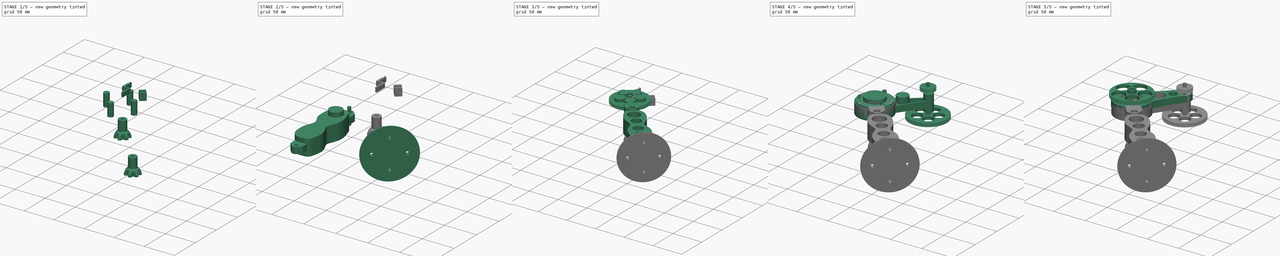
[diagram: build sequence overview — one tinted view per stage of 5, left to right]
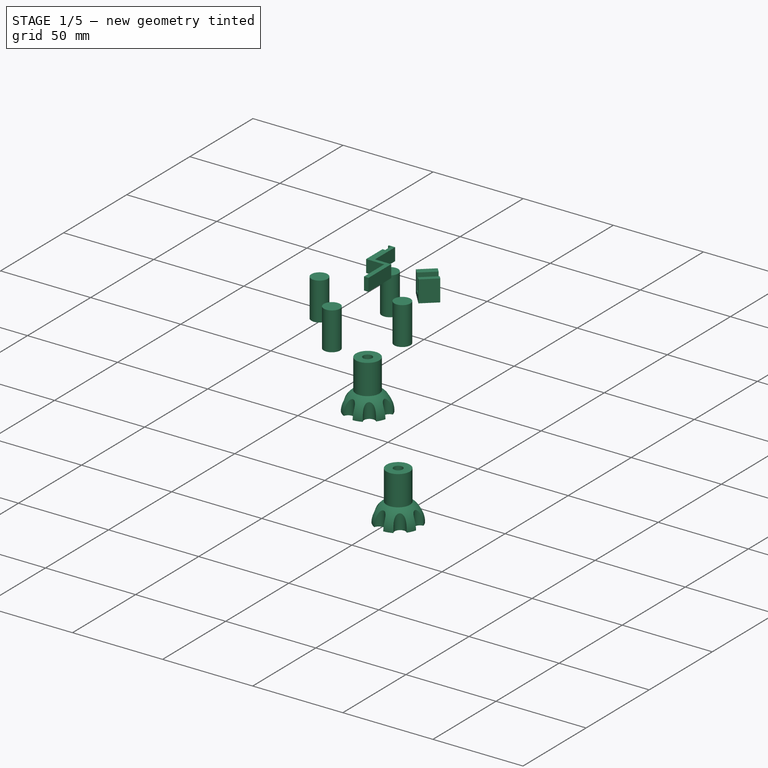
[diagram: stage 1 of 5 — iso view after this stage's code; geometry added in this stage tinted green]
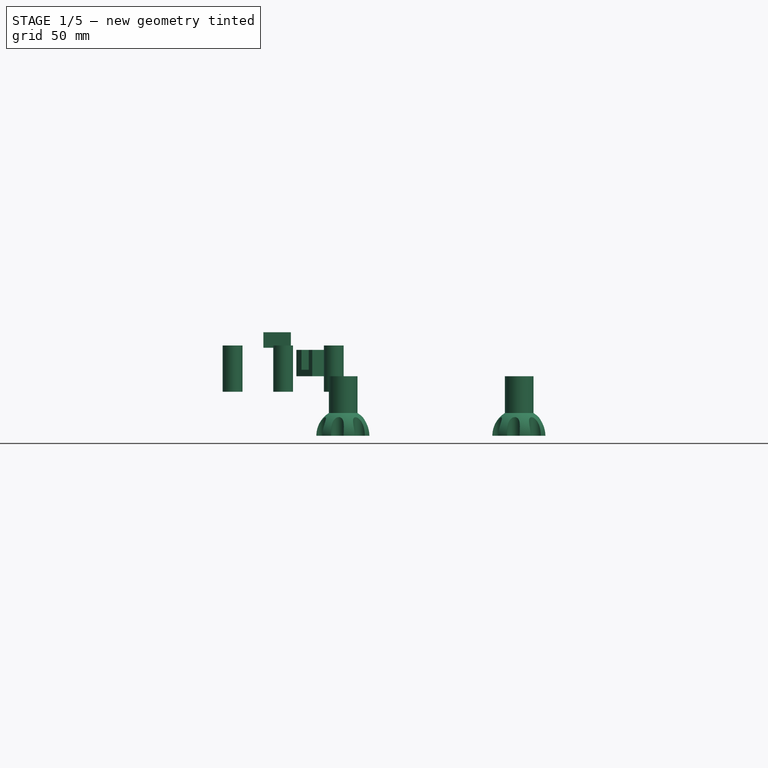
[diagram: stage 1 of 5 — front view after this stage's code; geometry added in this stage tinted green]
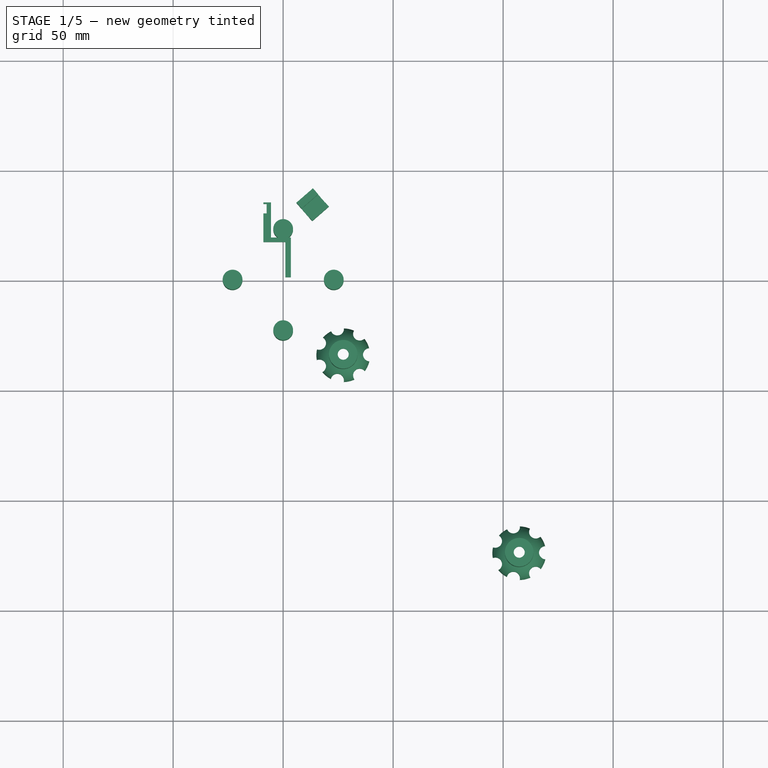
[diagram: stage 1 of 5 — top view after this stage's code; geometry added in this stage tinted green]
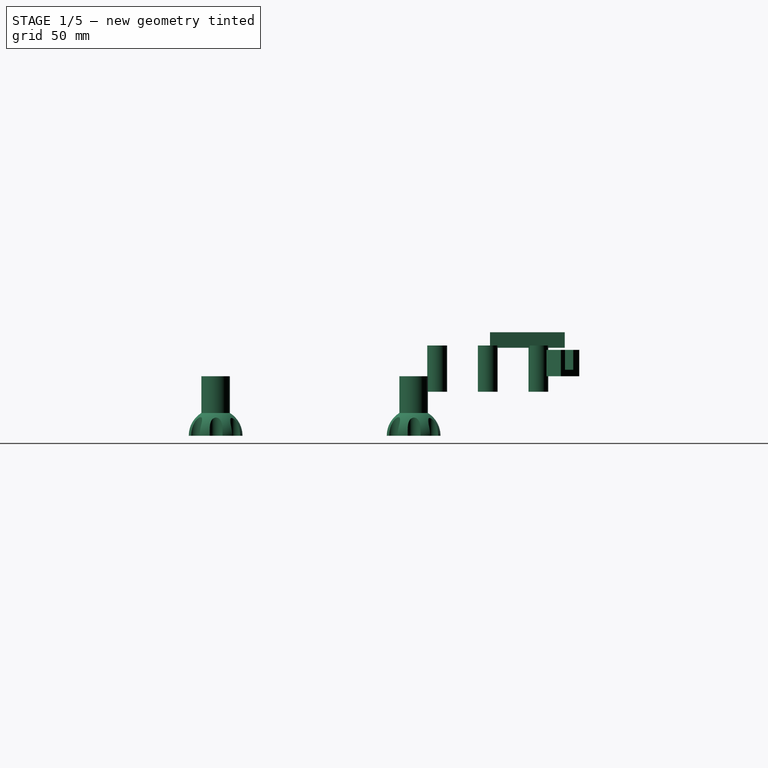
[diagram: stage 1 of 5 — right view after this stage's code; geometry added in this stage tinted green]
FCSTD DOCUMENT  (FreeCAD 0.20R29603 (Git))
Label: шкиф для счетчика оборотов
License: All rights reserved
LicenseURL: http://en.wikipedia.org/wiki/All_rights_reserved
objects: Part::Cylinder×47, Part::Cut×44, Part::MultiFuse×21, Part::Box×19, Part::FeaturePython×8, Part::Torus×6, Part::Fillet×6, Part::Chamfer×5, Part::Extrusion×4, Sketcher::SketchObject×2, Part::RegularPolygon×2, Part::Sphere×2, Part::MultiCommon×1
note: 165 computed .brp shape members not serialized (recipe doc carries the construction recipe); baked Part::Feature solids carry a one-line shape summary decoded from their .brp

FEATURE [Part::Cylinder] Cylinder039  label="Цилиндр039"
  Angle = 360
  AttacherType = Attacher::AttachEngine3D
  FirstAngle = 0
  Height = 21
  Placement = pos=(23,0,0) rot=(0,0,1;0rad)
  Radius = 4.5
  SecondAngle = 0
FEATURE [Part::FeaturePython] Array005  # Draft array (typed FeaturePython)
  Angle = 360
  ArrayType = 1
  Axis = (0,0,1)
  Base = -> Cylinder039
  Center = (0,0,0)
  Fuse = false
  IntervalAxis = (0,0,0)
  IntervalX = (1,0,0)
  IntervalY = (0,1,0)
  IntervalZ = (0,0,1)
  NumberPolar = 4
  NumberX = 2
  NumberY = 2
  NumberZ = 1
  Placement = pos=(0,0,-20) rot=(0,0,1;0rad)
FEATURE [Part::RegularPolygon] RegularPolygon  label="Правильный многоугольник"
  AttacherType = Attacher::AttachEngine3D
  Circumradius = 4.5
  Placement = pos=(27.3,-33.7,-17) rot=(0,0,1;0rad)
  Polygon = 6
FEATURE [Part::Extrusion] Extrude003
  Base = -> RegularPolygon
  Dir = (0,0,1)
  DirMode = 2
  FaceMakerClass = Part::FaceMakerBullseye
  LengthFwd = 24
  LengthRev = 0
  Placement = pos=(0,0,-15) rot=(0,0,1;0rad)
  Solid = true
  Symmetric = false
FEATURE [Part::Cylinder] Cylinder040  label="Цилиндр040"
  Angle = 360
  AttacherType = Attacher::AttachEngine3D
  FirstAngle = 0
  Height = 31
  Placement = pos=(27.3,-33.7,-33) rot=(0,0,1;0rad)
  Radius = 2.5
  SecondAngle = 0
FEATURE [Part::Cylinder] Cylinder041  label="Цилиндр041"
  Angle = 360
  AttacherType = Attacher::AttachEngine3D
  FirstAngle = 0
  Height = 27
  Placement = pos=(27.3,-33.7,-32) rot=(0,0,1;0rad)
  Radius = 6.5
  SecondAngle = 0
FEATURE [Part::Cut] Cut035
  Base = -> Cylinder041
  Tool = -> Cylinder040
FEATURE [Part::Sphere] Sphere  label="Сфера"
  Angle1 = -90
  Angle2 = 90
  Angle3 = 180
  AttacherType = Attacher::AttachEngine3D
  Placement = pos=(27.3,-33.7,-32) rot=(1,0,0;1.5708rad)
  Radius = 12.2
FEATURE [Part::MultiFuse] Fusion018
  Shapes = -> [Cut035,Sphere]
FEATURE [Part::Cut] Cut036
  Base = -> Fusion018
  Tool = -> Extrude003
FEATURE [Part::Cylinder] Cylinder042  label="Цилиндр042"
  Angle = 360
  AttacherType = Attacher::AttachEngine3D
  FirstAngle = 0
  Height = 10
  Placement = pos=(12,0,0) rot=(0,0,1;0rad)
  Radius = 3
  SecondAngle = 0
FEATURE [Part::FeaturePython] Array006  # Draft array (typed FeaturePython)
  AlwaysSyncPlacement = false
  Angle = 360
  ArrayType = 1
  Axis = (0,0,1)
  Base = -> Cylinder042
  Center = (0,0,0)
  Count = 7
  ExpandArray = false
  Fuse = false
  IntervalAxis = (0,0,0)
  IntervalX = (50,0,0)
  IntervalY = (0,50,0)
  IntervalZ = (0,0,50)
  NumberCircles = 3
  NumberPolar = 7
  NumberX = 2
  NumberY = 2
  NumberZ = 1
  Placement = pos=(27.3,-33.5,-32) rot=(0,0,1;0rad)
  PlacementList = 7 placements: [(12,0,0),(7.48188,9.38198,0),(-2.67025,11.6991,0),(-10.8116,5.2066,0),(-10.8116,-5.2066,0),(-2.67025,-11.6991,0),(7.48188,-9.38198,0)]
  RadialDistance = 50
  ScaleList = (7) [(1,1,1),(1,1,1),(1,1,1),(1,1,1),(1,1,1),(1,1,1),(1,1,1)]
  Symmetry = 1
  TangentialDistance = 25
FEATURE [Part::Cut] Cut037
  Base = -> Cut036
  Placement = pos=(0,0,-8) rot=(0,0,1;0rad)
  Tool = -> Array006
FEATURE [Part::Cylinder] Cylinder043  label="Цилиндр043"
  Angle = 360
  AttacherType = Attacher::AttachEngine3D
  FirstAngle = 0
  Height = 31
  Placement = pos=(27.3,-33.7,-33) rot=(0,0,1;0rad)
  Radius = 2.5
  SecondAngle = 0
FEATURE [Part::Cylinder] Cylinder044  label="Цилиндр044"
  Angle = 360
  AttacherType = Attacher::AttachEngine3D
  FirstAngle = 0
  Height = 27
  Placement = pos=(27.3,-33.7,-32) rot=(0,0,1;0rad)
  Radius = 6.5
  SecondAngle = 0
FEATURE [Part::Cylinder] Cylinder045  label="Цилиндр045"
  Angle = 360
  AttacherType = Attacher::AttachEngine3D
  FirstAngle = 0
  Height = 10
  Placement = pos=(12,0,0) rot=(0,0,1;0rad)
  Radius = 3
  SecondAngle = 0
FEATURE [Part::RegularPolygon] RegularPolygon001  label="Правильный многоугольник001"
  AttacherType = Attacher::AttachEngine3D
  Circumradius = 4.5
  Placement = pos=(27.3,-33.7,-17) rot=(0,0,1;0rad)
  Polygon = 6
FEATURE [Part::Extrusion] Extrude004
  Base = -> RegularPolygon001
  Dir = (0,0,1)
  DirMode = 2
  FaceMakerClass = Part::FaceMakerBullseye
  LengthFwd = 24
  LengthRev = 0
  Placement = pos=(0,0,-15) rot=(0,0,1;0rad)
  Solid = true
  Symmetric = false
FEATURE [Part::Sphere] Sphere001  label="Сфера001"
  Angle1 = -90
  Angle2 = 90
  Angle3 = 180
  AttacherType = Attacher::AttachEngine3D
  Placement = pos=(27.3,-33.7,-32) rot=(1,0,0;1.5708rad)
  Radius = 12.2
FEATURE [Part::Cut] Cut039
  Base = -> Cylinder044
  Tool = -> Cylinder043
FEATURE [Part::MultiFuse] Fusion019
  Shapes = -> [Cut039,Sphere001]
FEATURE [Part::Cut] Cut040
  Base = -> Fusion019
  Tool = -> Extrude004
FEATURE [Part::FeaturePython] Array007  # Draft array (typed FeaturePython)
  AlwaysSyncPlacement = false
  Angle = 360
  ArrayType = 1
  Axis = (0,0,1)
  Base = -> Cylinder045
  Center = (0,0,0)
  Count = 7
  ExpandArray = false
  Fuse = false
  IntervalAxis = (0,0,0)
  IntervalX = (50,0,0)
  IntervalY = (0,50,0)
  IntervalZ = (0,0,50)
  NumberCircles = 3
  NumberPolar = 7
  NumberX = 2
  NumberY = 2
  NumberZ = 1
  Placement = pos=(27.3,-33.5,-32) rot=(0,0,1;0rad)
  PlacementList = 7 placements: [(12,0,0),(7.48188,9.38198,0),(-2.67025,11.6991,0),(-10.8116,5.2066,0),(-10.8116,-5.2066,0),(-2.67025,-11.6991,0),(7.48188,-9.38198,0)]
  RadialDistance = 50
  ScaleList = (7) [(1,1,1),(1,1,1),(1,1,1),(1,1,1),(1,1,1),(1,1,1),(1,1,1)]
  Symmetry = 1
  TangentialDistance = 25
FEATURE [Part::Cut] Cut038
  Base = -> Cut040
  Placement = pos=(80,-90,-8) rot=(0,0,1;0rad)
  Tool = -> Array007
FEATURE [Part::Box] Box013  label="Куб013"
  AttacherType = Attacher::AttachEngine3D
  Height = 12
  Length = 11
  Placement = pos=(6,35,-13) rot=(0,0,-1;0.855211rad)
  Width = 10
FEATURE [Part::Box] Box014  label="Куб014"
  AttacherType = Attacher::AttachEngine3D
  Height = 9
  Length = 5
  Placement = pos=(8,32,-10) rot=(0,0,-1;0.855211rad)
  Width = 11
FEATURE [Part::Cut] Cut041
  Base = -> Box013
  Tool = -> Box014
FEATURE [Part::Cylinder] Cylinder046  label="Цилиндр046"
  Angle = 360
  AttacherType = Attacher::AttachEngine3D
  FirstAngle = 0
  Height = 10
  Placement = pos=(12,36,-6) rot=(-0.884029,-0.330525,0.330525;1.69375rad)
  Radius = 1.5
  SecondAngle = 0
FEATURE [Part::Cut] Cut042
  Base = -> Cut041
  Tool = -> Cylinder046
FEATURE [Part::Box] Box015  label="Куб015"
  AttacherType = Attacher::AttachEngine3D
  Height = 7
  Length = 2.5
  Placement = pos=(1,1,0) rot=(0,0,1;0rad)
  Width = 18
FEATURE [Part::Box] Box016  label="Куб016"
  AttacherType = Attacher::AttachEngine3D
  Height = 7
  Length = 12
  Placement = pos=(-9,17,0) rot=(0,0,1;0rad)
  Width = 2
FEATURE [Part::Box] Box017  label="Куб017"
  AttacherType = Attacher::AttachEngine3D
  Height = 7
  Length = 3.5
  Placement = pos=(-9,17,0) rot=(0,0,1;0rad)
  Width = 18
FEATURE [Part::Box] Box018  label="Куб018"
  AttacherType = Attacher::AttachEngine3D
  Height = 7
  Length = 3.5
  Placement = pos=(-11,30,0) rot=(0,0,1;0rad)
  Width = 4.3
FEATURE [Part::Cut] Cut043
  Base = -> Box017
  Tool = -> Box018
FEATURE [Part::MultiFuse] Fusion020
  Shapes = -> [Box015,Box016,Cut043]
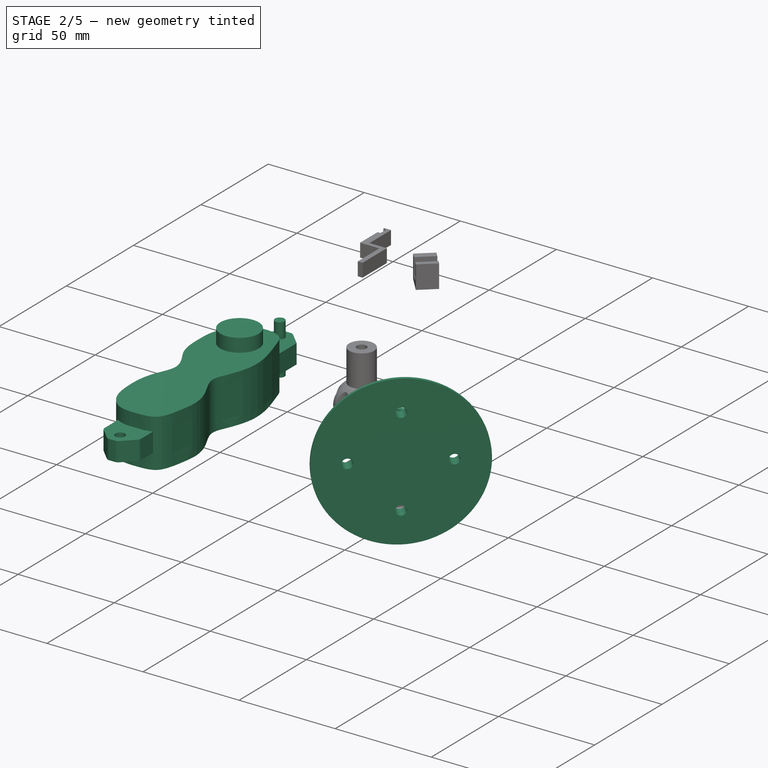
[diagram: stage 2 of 5 — iso view after this stage's code; geometry added in this stage tinted green]
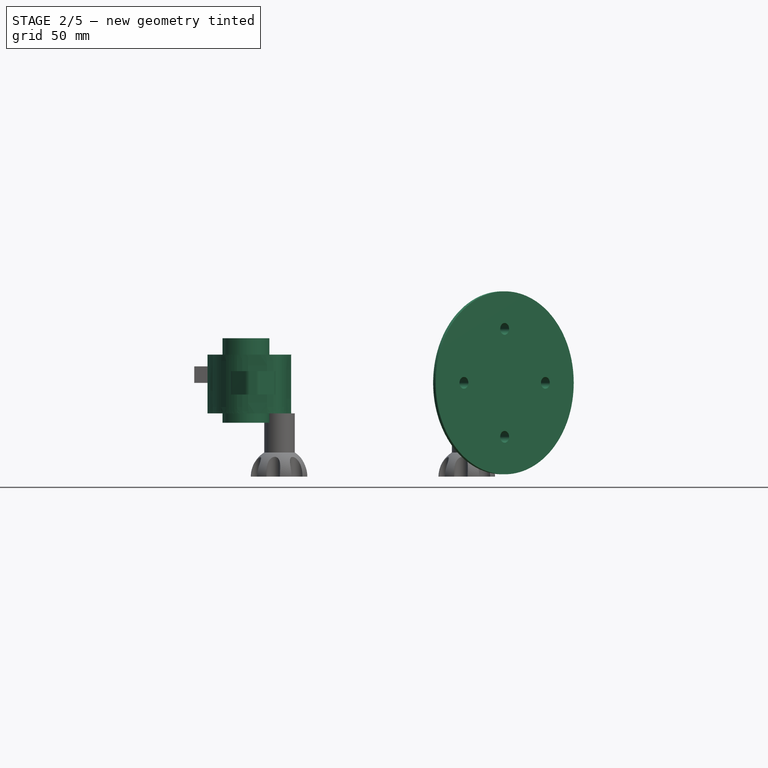
[diagram: stage 2 of 5 — front view after this stage's code; geometry added in this stage tinted green]
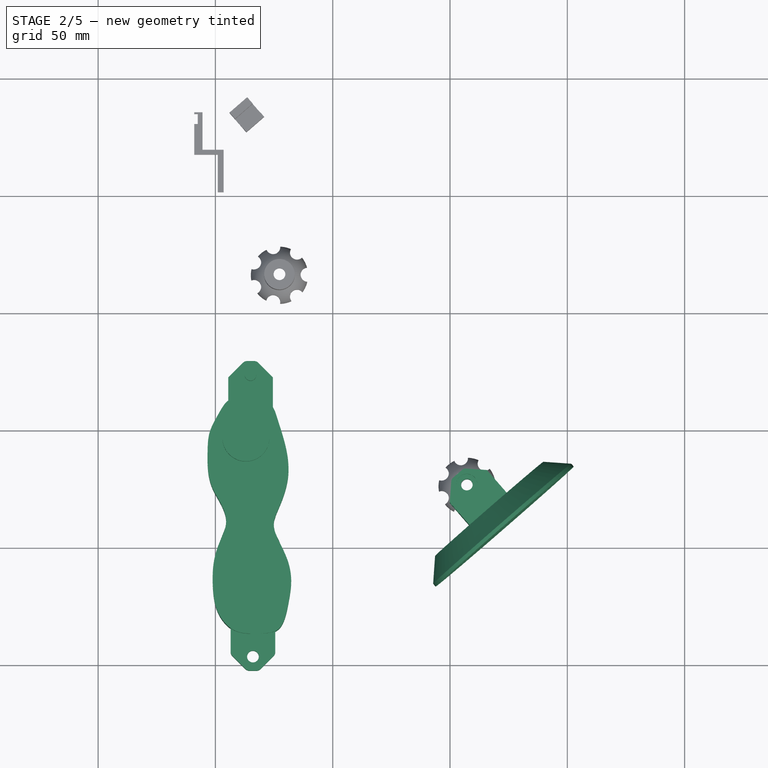
[diagram: stage 2 of 5 — top view after this stage's code; geometry added in this stage tinted green]
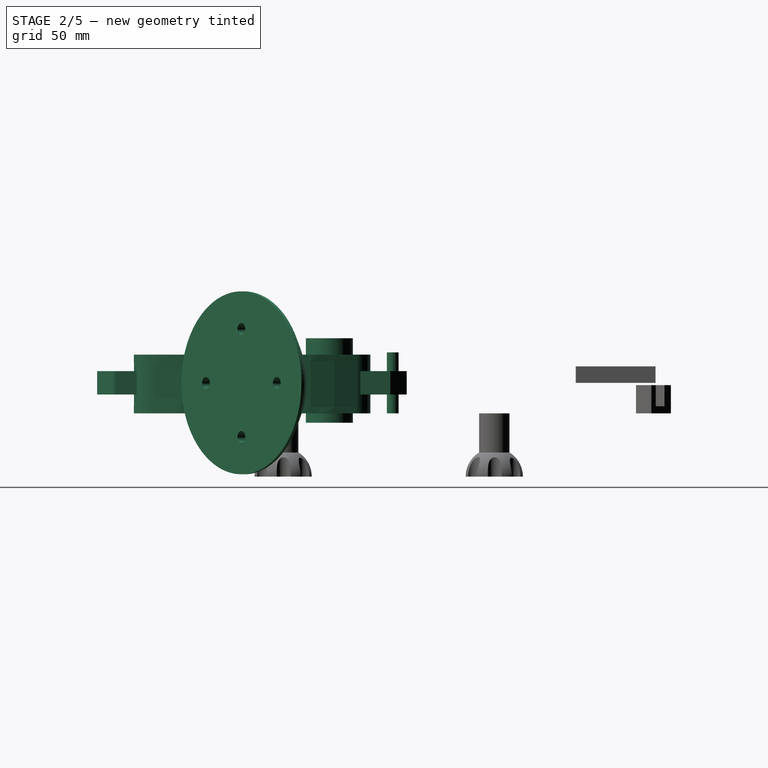
[diagram: stage 2 of 5 — right view after this stage's code; geometry added in this stage tinted green]
FEATURE [Part::Box] Box008  label="Куб008"
  AttacherType = Attacher::AttachEngine3D
  Height = 24
  Length = 21
  Placement = pos=(44.5,-45,-12.5) rot=(0,0,1;0rad)
  Width = 22
FEATURE [Part::Cylinder] Cylinder028  label="Цилиндр028"
  Angle = 360
  AttacherType = Attacher::AttachEngine3D
  FirstAngle = 0
  Height = 5
  Placement = pos=(55,-39,8) rot=(0,0,1;0rad)
  Radius = 4.5
  SecondAngle = 0
FEATURE [Part::Box] Box009  label="Куб009"
  AttacherType = Attacher::AttachEngine3D
  Height = 21
  Length = 18
  Placement = pos=(46,-30,-11) rot=(0,0,1;0rad)
  Width = 10
FEATURE [Part::Box] Box010  label="Куб010"
  AttacherType = Attacher::AttachEngine3D
  Height = 10
  Length = 24
  Placement = pos=(43,-46,-5) rot=(0,0,1;0rad)
  Width = 14
FEATURE [Part::Cylinder] Cylinder029  label="Цилиндр029"
  Angle = 360
  AttacherType = Attacher::AttachEngine3D
  FirstAngle = 0
  Height = 32
  Placement = pos=(55,-39,-20) rot=(0,0,1;0rad)
  Radius = 2.5
  SecondAngle = 0
FEATURE [Part::Cylinder] Cylinder030  label="Цилиндр030"
  Angle = 360
  AttacherType = Attacher::AttachEngine3D
  FirstAngle = 0
  Height = 5
  Placement = pos=(55,-39,-14) rot=(0,0,1;0rad)
  Radius = 4.5
  SecondAngle = 0
FEATURE [Part::Cut] Cut025
  Base = -> Box008
  Tool = -> Box009
FEATURE [Part::Chamfer] Chamfer001
  Base = -> Cut025
  Edges = 2 edges r=7: [Edge1,Edge6]
FEATURE [Part::Fillet] Fillet001
  Base = -> Chamfer001
  Edges = 2 edges r=2: [Edge11,Edge21]
FEATURE [Part::Cut] Cut024
  Base = -> Fillet001
  Tool = -> Box010
FEATURE [Part::Cut] Cut027
  Base = -> Cut024
  Tool = -> Cylinder030
FEATURE [Part::Cut] Cut026
  Base = -> Cut027
  Tool = -> Cylinder028
FEATURE [Part::Cut] Cut023
  Base = -> Cut026
  Placement = pos=(-40,-38,0) rot=(0,0,1;0rad)
  Tool = -> Cylinder029
FEATURE [Part::Box] Box011  label="Куб011"
  AttacherType = Attacher::AttachEngine3D
  Height = 10
  Length = 19
  Placement = pos=(6,-92,-5) rot=(0,0,1;0rad)
  Width = 21
FEATURE [Part::Chamfer] Chamfer002
  Base = -> Box011
  Edges = 2 edges r=7: [Edge3,Edge7]
FEATURE [Part::Fillet] Fillet002
  Base = -> Chamfer002
  Edges = 2 edges r=2.7: [Edge11,Edge17]
  Placement = pos=(-0.5,0,0) rot=(0,0,1;0rad)
FEATURE [Part::Cylinder] Cylinder031  label="Цилиндр031"
  Angle = 360
  AttacherType = Attacher::AttachEngine3D
  FirstAngle = 0
  Height = 26
  Placement = pos=(15,-77,-13) rot=(0,0,1;0rad)
  Radius = 2.5
  SecondAngle = 0
FEATURE [Part::Cylinder] Cylinder032  label="Цилиндр032"
  Angle = 360
  AttacherType = Attacher::AttachEngine3D
  FirstAngle = 0
  Height = 26
  Placement = pos=(15,-77,-13) rot=(0,0,1;0rad)
  Radius = 2.5
  SecondAngle = 0
FEATURE [Part::Box] Box012  label="Куб012"
  AttacherType = Attacher::AttachEngine3D
  Height = 10
  Length = 19
  Placement = pos=(6,-92,-5) rot=(0,0,1;0rad)
  Width = 21
FEATURE [Part::Chamfer] Chamfer003
  Base = -> Box012
  Edges = 2 edges r=7: [Edge3,Edge7]
FEATURE [Part::Fillet] Fillet005
  Base = -> Chamfer003
  Edges = 2 edges r=2.7: [Edge11,Edge17]
  Placement = pos=(-0.5,0,0) rot=(0,0,1;0rad)
FEATURE [Part::Cut] Cut029
  Base = -> Fillet005
  Tool = -> Cylinder032
FEATURE [Part::Fillet] Fillet004
  Base = -> Cut029
  Edges = 2 edges r=2.3: [Edge12,Edge23]
  Placement = pos=(31,-274,0) rot=(0,0,1;3.14159rad)
FEATURE [Sketcher::SketchObject] Sketch001
  FullyConstrained = false
  sketch-geometry (61):
    g0-g30: Circle x31 (B-spline internal-alignment scaffolding for g31; pole/knot coordinates omitted)
    g31: BSplineCurve PolesCount=31 KnotsCount=29 Degree=3 IsPeriodic=0
    g32-g60: GeomPoint x29 (B-spline internal-alignment scaffolding for g31; pole/knot coordinates omitted)
  constraints (4):
    c: Weight(g0) = 1
    c: Equal(g0, g1-g30) x30
    c: InternalAlignment(g0-g30 -> g31) x31
    c: InternalAlignment(g32-g60 -> g31) x29
FEATURE [Part::Extrusion] Extrude001
  Base = -> Sketch001
  Dir = (0,0,1)
  DirMode = 2
  FaceMakerClass = Part::FaceMakerBullseye
  LengthFwd = 25
  LengthRev = 0
  Placement = pos=(0,0,-13) rot=(0,0,1;0rad)
  Solid = true
  Symmetric = false
FEATURE [Part::Cylinder] Cylinder033  label="Цилиндр033"
  Angle = 360
  AttacherType = Attacher::AttachEngine3D
  FirstAngle = 0
  Height = 36
  Placement = pos=(13,-104,-17) rot=(0,0,1;0rad)
  Radius = 10
  SecondAngle = 0
FEATURE [Part::Cylinder] Cylinder037  label="Цилиндр037"
  Angle = 360
  AttacherType = Attacher::AttachEngine3D
  FirstAngle = 0
  Height = 10
  Placement = pos=(14.5,-70,0) rot=(-1,0,0;1.5708rad)
  Radius = 39
  SecondAngle = 0
FEATURE [Part::Chamfer] Chamfer004
  Base = -> Cylinder037
  Edges = 1 edges r=8.4: [Edge3]
  Placement = pos=(0,7,0) rot=(0,0,1;0rad)
FEATURE [Part::Cylinder] Cylinder038  label="Цилиндр038"
  Angle = 360
  AttacherType = Attacher::AttachEngine3D
  FirstAngle = 0
  Height = 21
  Placement = pos=(23,0,0) rot=(0,0,1;0rad)
  Radius = 2.5
  SecondAngle = 0
FEATURE [Part::FeaturePython] Array004  # Draft array (typed FeaturePython)
  Angle = 360
  ArrayType = 1
  Axis = (0,0,1)
  Base = -> Cylinder038
  Center = (0,0,0)
  Fuse = false
  IntervalAxis = (0,0,0)
  IntervalX = (1,0,0)
  IntervalY = (0,1,0)
  IntervalZ = (0,0,1)
  NumberPolar = 4
  NumberX = 2
  NumberY = 2
  NumberZ = 1
FEATURE [Part::MultiFuse] Fusion016
  Placement = pos=(14.5,-61,0) rot=(-1,0,0;1.5708rad)
  Shapes = -> [Array004,Array005]
FEATURE [Part::Cut] Cut034
  Base = -> Chamfer004
  Tool = -> Fusion016
FEATURE [Part::MultiFuse] Fusion017
  Placement = pos=(169,-172,0) rot=(0,0,1;3.85718rad)
  Shapes = -> [Cut023,Cut034]
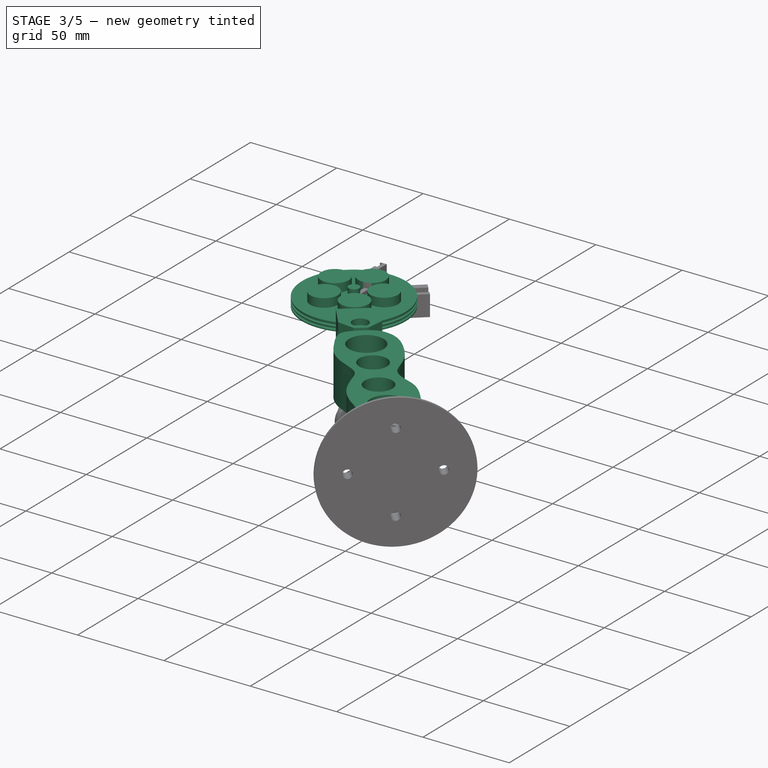
[diagram: stage 3 of 5 — iso view after this stage's code; geometry added in this stage tinted green]
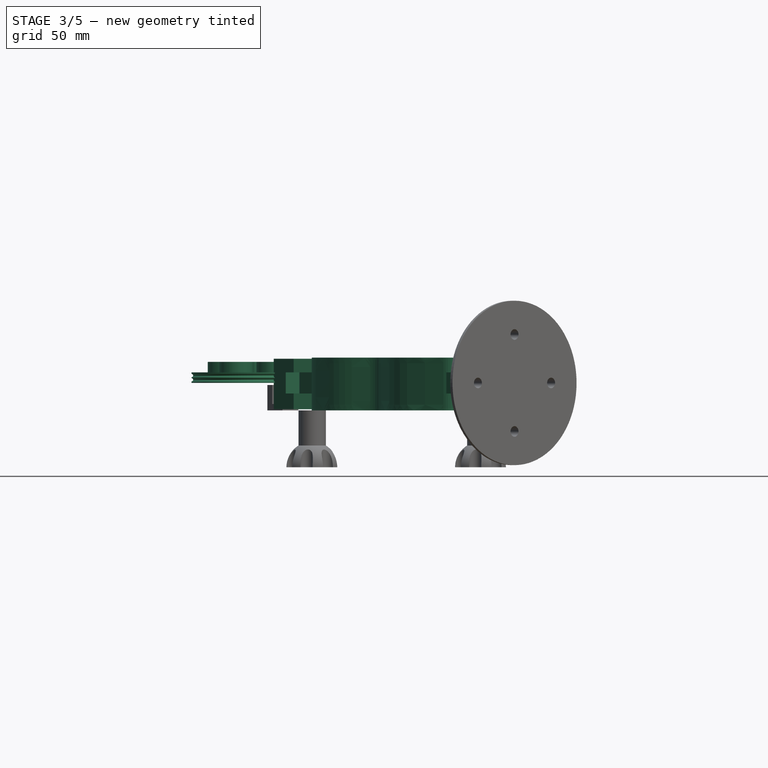
[diagram: stage 3 of 5 — front view after this stage's code; geometry added in this stage tinted green]
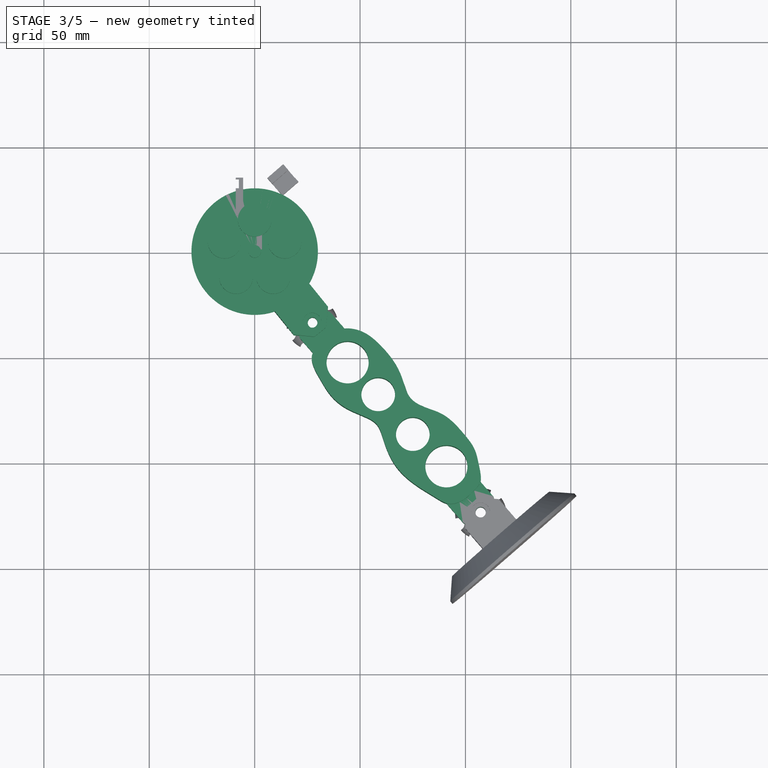
[diagram: stage 3 of 5 — top view after this stage's code; geometry added in this stage tinted green]
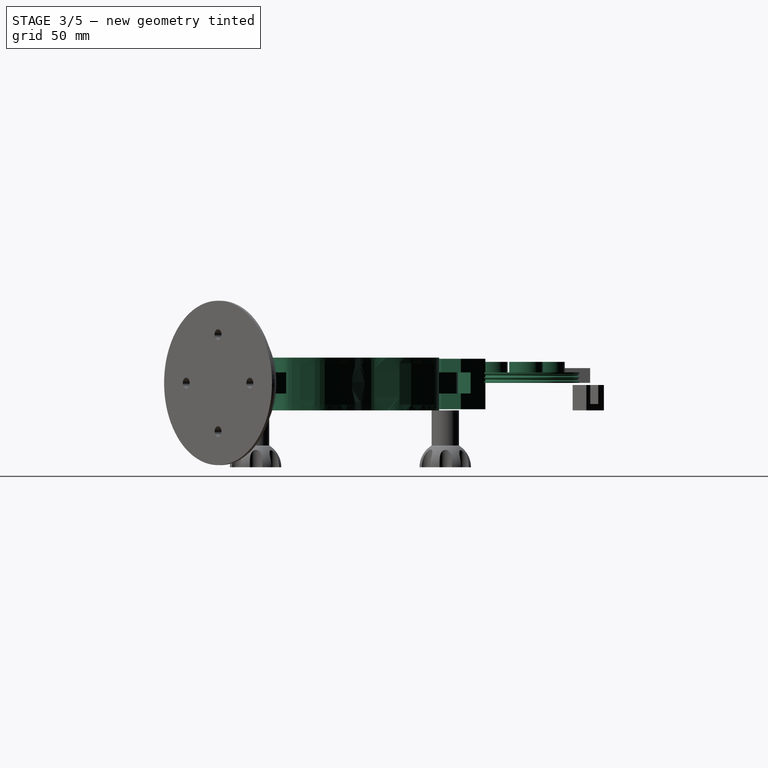
[diagram: stage 3 of 5 — right view after this stage's code; geometry added in this stage tinted green]
FEATURE [Part::Cylinder] Cylinder021  label="Цилиндр021"
  Angle = 360
  AttacherType = Attacher::AttachEngine3D
  FirstAngle = 0
  Height = 5
  Radius = 30
  SecondAngle = 0
FEATURE [Part::Torus] Torus004  label="Тор004"
  Angle1 = -180
  Angle2 = 180
  Angle3 = 360
  AttacherType = Attacher::AttachEngine3D
  Placement = pos=(0,0,1.5) rot=(0,0,1;0rad)
  Radius1 = 30
  Radius2 = 0.8
FEATURE [Part::Torus] Torus005  label="Тор005"
  Angle1 = -180
  Angle2 = 180
  Angle3 = 360
  AttacherType = Attacher::AttachEngine3D
  Placement = pos=(0,0,3.5) rot=(0,0,1;0rad)
  Radius1 = 30
  Radius2 = 0.8
FEATURE [Part::Cylinder] Cylinder022  label="Цилиндр022"
  Angle = 360
  AttacherType = Attacher::AttachEngine3D
  FirstAngle = 0
  Height = 10
  Radius = 3
  SecondAngle = 0
FEATURE [Part::Cut] Cut014
  Base = -> Cylinder021
  Tool = -> Torus004
FEATURE [Part::Cut] Cut015
  Base = -> Cut014
  Tool = -> Torus005
FEATURE [Part::MultiFuse] Fusion013
  Shapes = -> [Cylinder022,Cut015]
FEATURE [Part::Cylinder] Cylinder024  label="Цилиндр024"
  Angle = 360
  AttacherType = Attacher::AttachEngine3D
  FirstAngle = 0
  Height = 10
  Placement = pos=(0,15,0) rot=(0,0,1;0rad)
  Radius = 8
  SecondAngle = 0
FEATURE [Part::FeaturePython] Array003  # Draft array (typed FeaturePython)
  Angle = 360
  ArrayType = 1
  Axis = (0,0,1)
  Base = -> Cylinder024
  Center = (0,0,0)
  Fuse = false
  IntervalAxis = (0,0,0)
  IntervalX = (1,0,0)
  IntervalY = (0,1,0)
  IntervalZ = (0,0,1)
  NumberPolar = 5
  NumberX = 2
  NumberY = 2
  NumberZ = 1
FEATURE [Part::MultiFuse] Fusion014
  Shapes = -> [Array003]
FEATURE [Part::Box] Box005  label="Куб005"
  AttacherType = Attacher::AttachEngine3D
  Height = 21
  Length = 18
  Placement = pos=(46,-30,-11) rot=(0,0,1;0rad)
  Width = 10
FEATURE [Part::Box] Box006  label="Куб006"
  AttacherType = Attacher::AttachEngine3D
  Height = 24
  Length = 21
  Placement = pos=(44.5,-45,-12.5) rot=(0,0,1;0rad)
  Width = 22
FEATURE [Part::Cut] Cut018
  Base = -> Box006
  Tool = -> Box005
FEATURE [Part::Chamfer] Chamfer
  Base = -> Cut018
  Edges = 2 edges r=7: [Edge1,Edge6]
FEATURE [Part::Fillet] Fillet
  Base = -> Chamfer
  Edges = 2 edges r=2: [Edge11,Edge21]
FEATURE [Part::Box] Box007  label="Куб007"
  AttacherType = Attacher::AttachEngine3D
  Height = 10
  Length = 24
  Placement = pos=(43,-46,-5) rot=(0,0,1;0rad)
  Width = 14
FEATURE [Part::Cut] Cut019
  Base = -> Fillet
  Tool = -> Box007
FEATURE [Part::Cylinder] Cylinder025  label="Цилиндр025"
  Angle = 360
  AttacherType = Attacher::AttachEngine3D
  FirstAngle = 0
  Height = 32
  Placement = pos=(55,-39,-20) rot=(0,0,1;0rad)
  Radius = 2.5
  SecondAngle = 0
FEATURE [Part::Cylinder] Cylinder026  label="Цилиндр026"
  Angle = 360
  AttacherType = Attacher::AttachEngine3D
  FirstAngle = 0
  Height = 5
  Placement = pos=(55,-39,-14) rot=(0,0,1;0rad)
  Radius = 4.5
  SecondAngle = 0
FEATURE [Part::Cylinder] Cylinder027  label="Цилиндр027"
  Angle = 360
  AttacherType = Attacher::AttachEngine3D
  FirstAngle = 0
  Height = 5
  Placement = pos=(55,-39,8) rot=(0,0,1;0rad)
  Radius = 4.5
  SecondAngle = 0
FEATURE [Part::Cut] Cut020
  Base = -> Cut019
  Tool = -> Cylinder026
FEATURE [Part::Cut] Cut021
  Base = -> Cut020
  Tool = -> Cylinder027
FEATURE [Part::Cut] Cut022
  Base = -> Cut021
  Placement = pos=(-40,-38,0) rot=(0,0,1;0.680678rad)
  Tool = -> Cylinder025
FEATURE [Part::Cut] Cut028
  Base = -> Fillet002
  Tool = -> Cylinder031
FEATURE [Part::Fillet] Fillet003
  Base = -> Cut028
  Edges = 2 edges r=2.3: [Edge12,Edge23]
FEATURE [Part::MultiFuse] Fusion015
  Shapes = -> [Fillet004,Fillet003,Extrude001]
FEATURE [Part::Cylinder] Cylinder034  label="Цилиндр034"
  Angle = 360
  AttacherType = Attacher::AttachEngine3D
  FirstAngle = 0
  Height = 36
  Placement = pos=(15,-126,-17) rot=(0,0,1;0rad)
  Radius = 8
  SecondAngle = 0
FEATURE [Part::Cylinder] Cylinder035  label="Цилиндр035"
  Angle = 360
  AttacherType = Attacher::AttachEngine3D
  FirstAngle = 0
  Height = 36
  Placement = pos=(15,-151,-17) rot=(0,0,1;0rad)
  Radius = 8
  SecondAngle = 0
FEATURE [Part::Cylinder] Cylinder036  label="Цилиндр036"
  Angle = 360
  AttacherType = Attacher::AttachEngine3D
  FirstAngle = 0
  Height = 36
  Placement = pos=(16,-172,-17) rot=(0,0,1;0rad)
  Radius = 10
  SecondAngle = 0
FEATURE [Part::Cut] Cut030
  Base = -> Fusion015
  Tool = -> Cylinder033
FEATURE [Part::Cut] Cut031
  Base = -> Cut030
  Tool = -> Cylinder036
FEATURE [Part::Cut] Cut032
  Base = -> Cut031
  Tool = -> Cylinder035
FEATURE [Part::Cut] Cut033
  Base = -> Cut032
  Placement = pos=(169,-172,0) rot=(0,0,1;3.85718rad)
  Tool = -> Cylinder034
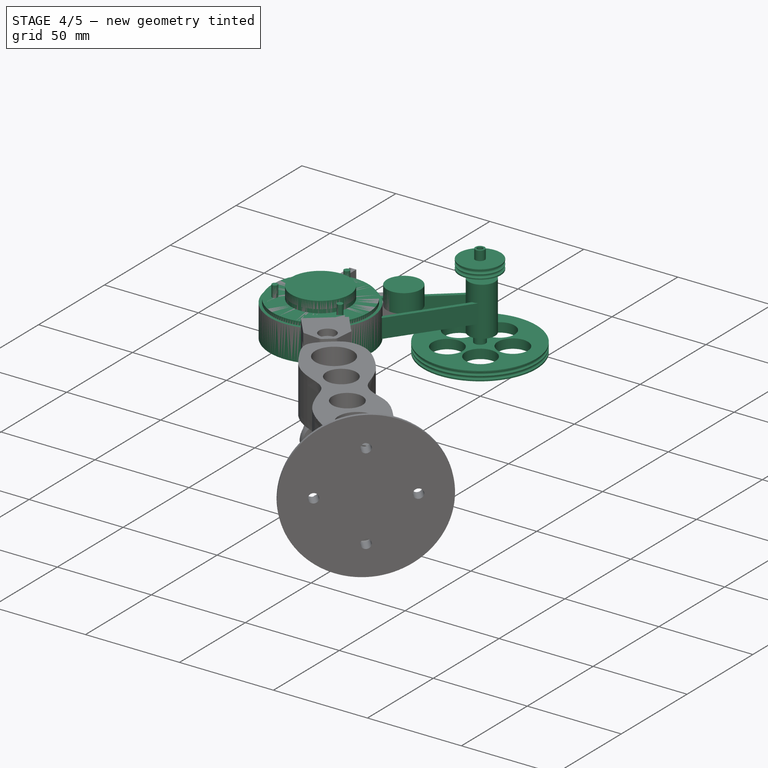
[diagram: stage 4 of 5 — iso view after this stage's code; geometry added in this stage tinted green]
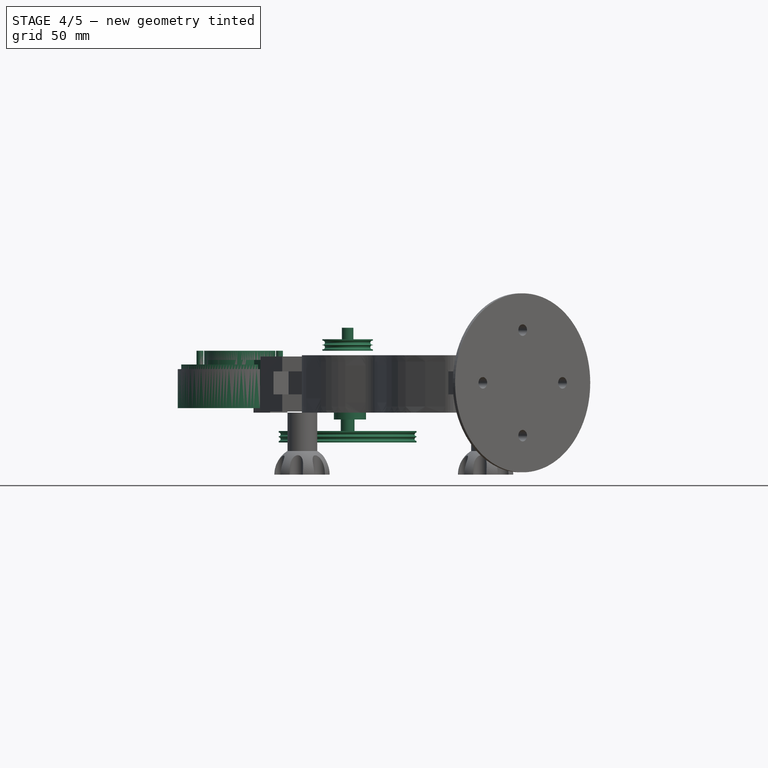
[diagram: stage 4 of 5 — front view after this stage's code; geometry added in this stage tinted green]
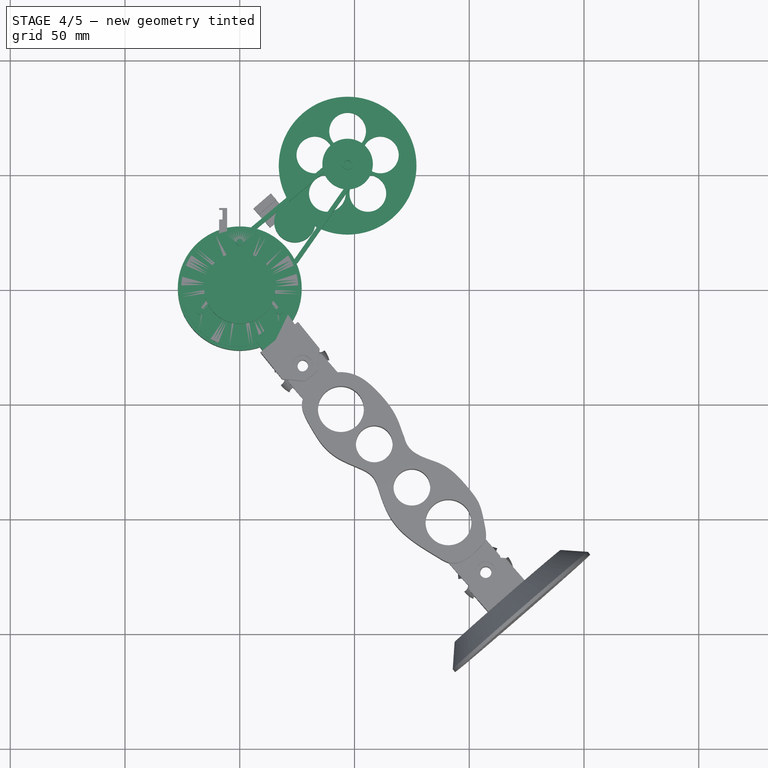
[diagram: stage 4 of 5 — top view after this stage's code; geometry added in this stage tinted green]
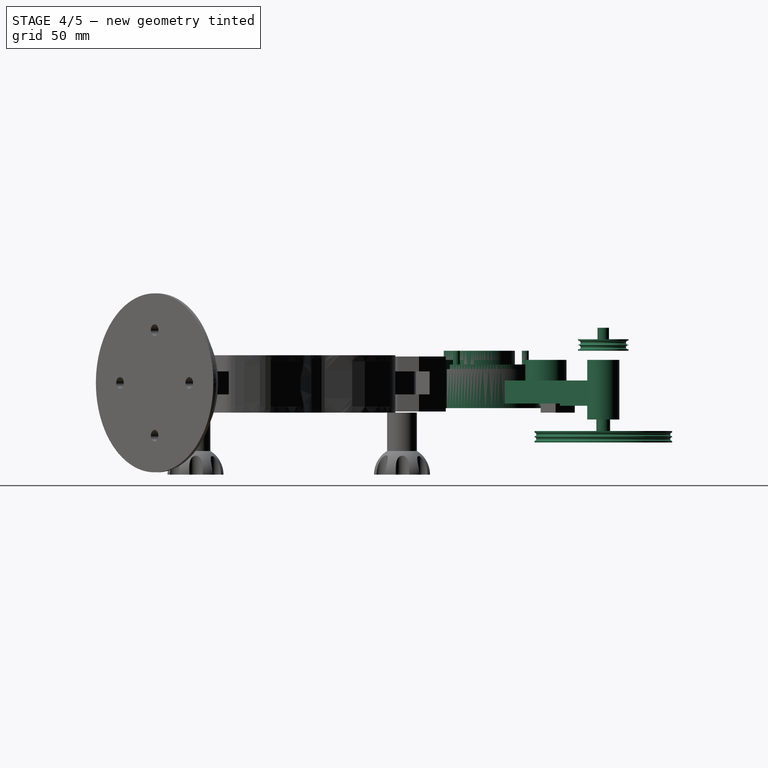
[diagram: stage 4 of 5 — right view after this stage's code; geometry added in this stage tinted green]
FEATURE [Part::Cylinder] Cylinder004  label="Цилиндр004"
  Angle = 360
  AttacherType = Attacher::AttachEngine3D
  FirstAngle = 0
  Height = 10
  Radius = 15.5
  SecondAngle = 0
FEATURE [Part::Cylinder] Cylinder005  label="Цилиндр005"
  Angle = 360
  AttacherType = Attacher::AttachEngine3D
  FirstAngle = 0
  Height = 4
  Radius = 25.5
  SecondAngle = 0
FEATURE [Part::Cylinder] Cylinder006  label="Цилиндр006"
  Angle = 360
  AttacherType = Attacher::AttachEngine3D
  FirstAngle = 0
  Height = 10
  Placement = pos=(0,20,0) rot=(0,0,1;0rad)
  Radius = 1.5
  SecondAngle = 0
FEATURE [Part::FeaturePython] Array001  # Draft array (typed FeaturePython)
  Angle = 360
  ArrayType = 1
  Axis = (0,0,1)
  Base = -> Cylinder006
  Center = (0,0,0)
  Fuse = false
  IntervalAxis = (0,0,0)
  IntervalX = (1,0,0)
  IntervalY = (0,1,0)
  IntervalZ = (0,0,1)
  NumberPolar = 3
  NumberX = 2
  NumberY = 2
  NumberZ = 1
FEATURE [Part::MultiFuse] Fusion002
  Shapes = -> [Array001]
FEATURE [Part::MultiFuse] Fusion003
  Shapes = -> [Fusion002,Cylinder005,Cylinder004]
FEATURE [Part::Cylinder] Cylinder007  label="Цилиндр007"
  Angle = 360
  AttacherType = Attacher::AttachEngine3D
  FirstAngle = 0
  Height = 4
  Radius = 25.5
  SecondAngle = 0
FEATURE [Part::Cylinder] Cylinder008  label="Цилиндр008"
  Angle = 360
  AttacherType = Attacher::AttachEngine3D
  FirstAngle = 0
  Height = 10
  Radius = 15.5
  SecondAngle = 0
FEATURE [Part::Cylinder] Cylinder009  label="Цилиндр009"
  Angle = 360
  AttacherType = Attacher::AttachEngine3D
  FirstAngle = 0
  Height = 10
  Placement = pos=(0,20,0) rot=(0,0,1;0rad)
  Radius = 1.5
  SecondAngle = 0
FEATURE [Part::FeaturePython] Array002  # Draft array (typed FeaturePython)
  Angle = 360
  ArrayType = 1
  Axis = (0,0,1)
  Base = -> Cylinder009
  Center = (0,0,0)
  Fuse = false
  IntervalAxis = (0,0,0)
  IntervalX = (1,0,0)
  IntervalY = (0,1,0)
  IntervalZ = (0,0,1)
  NumberPolar = 3
  NumberX = 2
  NumberY = 2
  NumberZ = 1
FEATURE [Part::MultiFuse] Fusion005
  Shapes = -> [Array002]
FEATURE [Part::MultiFuse] Fusion004
  Placement = pos=(0,0,4) rot=(0,0,1;0rad)
  Shapes = -> [Fusion005,Cylinder007,Cylinder008]
FEATURE [Part::Cylinder] Cylinder010  label="Цилиндр010"
  Angle = 360
  AttacherType = Attacher::AttachEngine3D
  FirstAngle = 0
  Height = 10
  Placement = pos=(24,29,0) rot=(0,0,1;0rad)
  Radius = 9
  SecondAngle = 0
FEATURE [Part::Cylinder] Cylinder012  label="Цилиндр012"
  Angle = 360
  AttacherType = Attacher::AttachEngine3D
  FirstAngle = 0
  Height = 26
  Placement = pos=(48,54,-16) rot=(0,0,1;0rad)
  Radius = 7
  SecondAngle = 0
FEATURE [Part::Cylinder] Cylinder016  label="Цилиндр016"
  Angle = 360
  AttacherType = Attacher::AttachEngine3D
  FirstAngle = 0
  Height = 17
  Placement = pos=(0,0,-11) rot=(0,0,1;0rad)
  Radius = 27
  SecondAngle = 0
FEATURE [Part::Box] Box002  label="Куб002"
  AttacherType = Attacher::AttachEngine3D
  Height = 21
  Length = 18
  Placement = pos=(12,-30,-11) rot=(0,0,1;0.610865rad)
  Width = 10
FEATURE [Part::Box] Box003  label="Куб003"
  AttacherType = Attacher::AttachEngine3D
  Height = 10
  Length = 51
  Placement = pos=(6,25,-10) rot=(0,0,1;0.698132rad)
  Width = 2
FEATURE [Part::Box] Box004  label="Куб004"
  AttacherType = Attacher::AttachEngine3D
  Height = 10
  Length = 45
  Placement = pos=(25,11,-9) rot=(0,0,1;0.959931rad)
  Width = 2
FEATURE [Part::Cylinder] Cylinder017  label="Цилиндр017"
  Angle = 360
  AttacherType = Attacher::AttachEngine3D
  FirstAngle = 0
  Height = 10
  Placement = pos=(0,0,-2) rot=(0,0,1;0rad)
  Radius = 1.5
  SecondAngle = 0
FEATURE [Part::Cylinder] Cylinder018  label="Цилиндр018"
  Angle = 360
  AttacherType = Attacher::AttachEngine3D
  FirstAngle = 0
  Height = 5
  Placement = pos=(0,0,-2) rot=(0,0,1;0rad)
  Radius = 11
  SecondAngle = 0
FEATURE [Part::Cylinder] Cylinder019  label="Цилиндр019"
  Angle = 360
  AttacherType = Attacher::AttachEngine3D
  FirstAngle = 0
  Height = 10
  Placement = pos=(0,0,-2) rot=(0,0,1;0rad)
  Radius = 2.5
  SecondAngle = 0
FEATURE [Part::Cut] Cut010
  Base = -> Cylinder019
  Tool = -> Cylinder017
FEATURE [Part::MultiFuse] Fusion012
  Shapes = -> [Cut010,Cylinder018]
FEATURE [Part::Torus] Torus002  label="Тор002"
  Angle1 = -180
  Angle2 = 180
  Angle3 = 360
  AttacherType = Attacher::AttachEngine3D
  Placement = pos=(0,0,1.5) rot=(0,0,1;0rad)
  Radius1 = 10.8
  Radius2 = 0.9
FEATURE [Part::Torus] Torus003  label="Тор003"
  Angle1 = -180
  Angle2 = 180
  Angle3 = 360
  AttacherType = Attacher::AttachEngine3D
  Placement = pos=(0,0,-0.5) rot=(0,0,1;0rad)
  Radius1 = 10.8
  Radius2 = 0.9
FEATURE [Part::Cut] Cut011
  Base = -> Fusion012
  Tool = -> Torus002
FEATURE [Part::Cut] Cut012
  Base = -> Cut011
  Tool = -> Torus003
FEATURE [Part::Cylinder] Cylinder020  label="Цилиндр020"
  Angle = 360
  AttacherType = Attacher::AttachEngine3D
  FirstAngle = 0
  Height = 22
  Placement = pos=(0,0,-4) rot=(0,0,1;0rad)
  Radius = 1.5
  SecondAngle = 0
FEATURE [Part::Cut] Cut013
  Base = -> Cut012
  Placement = pos=(47,54,16) rot=(0,0,1;0rad)
  Tool = -> Cylinder020
FEATURE [Part::Cylinder] Cylinder023  label="Цилиндр023"
  Angle = 360
  AttacherType = Attacher::AttachEngine3D
  FirstAngle = 0
  Height = 10
  Radius = 1.5
  SecondAngle = 0
FEATURE [Part::Cut] Cut016
  Base = -> Fusion013
  Tool = -> Cylinder023
FEATURE [Part::Cut] Cut017
  Base = -> Cut016
  Placement = pos=(47,54,-26) rot=(0,0,1;0rad)
  Tool = -> Fusion014
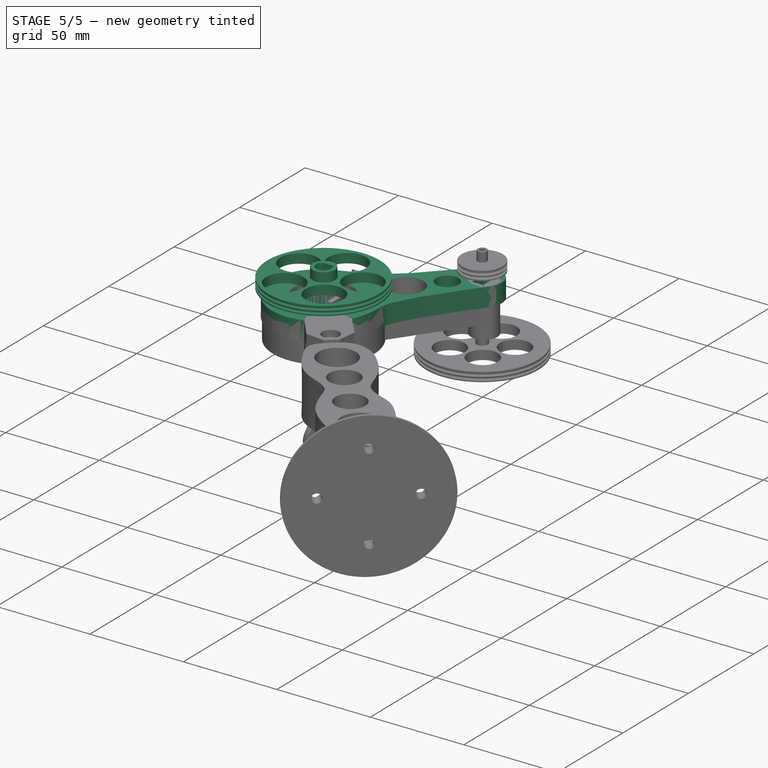
[diagram: stage 5 of 5 — iso view after this stage's code; geometry added in this stage tinted green]
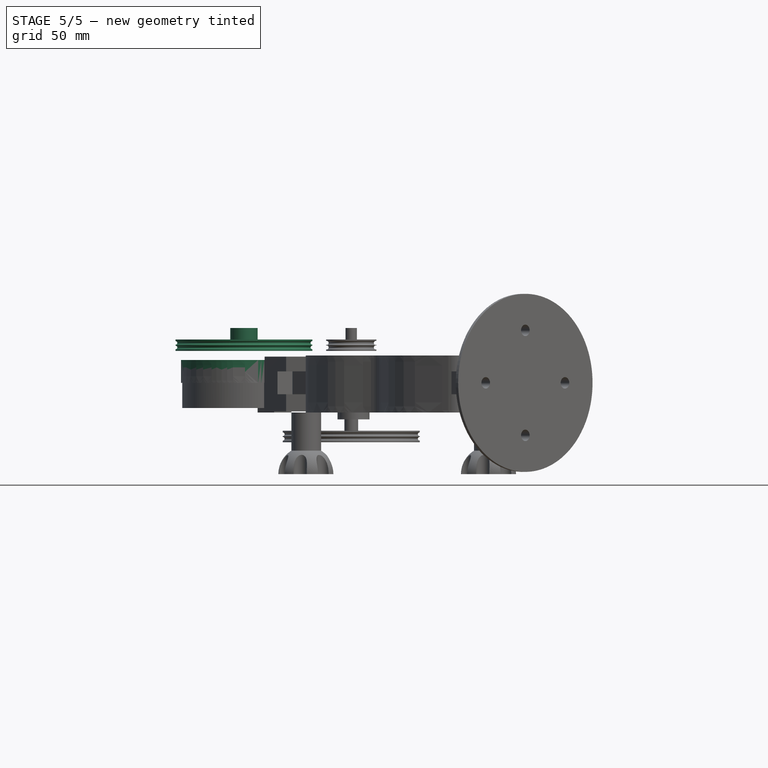
[diagram: stage 5 of 5 — front view after this stage's code; geometry added in this stage tinted green]
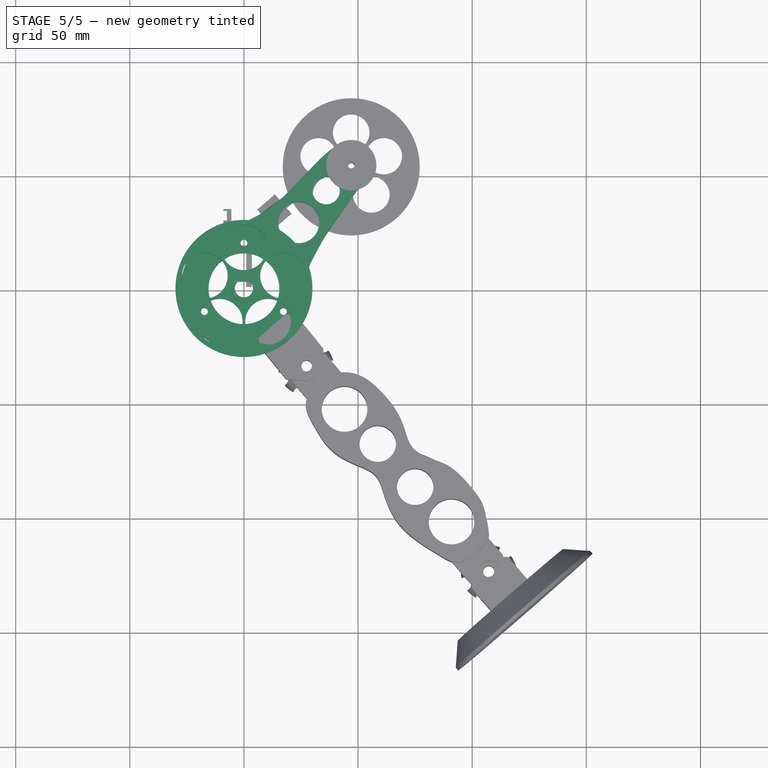
[diagram: stage 5 of 5 — top view after this stage's code; geometry added in this stage tinted green]
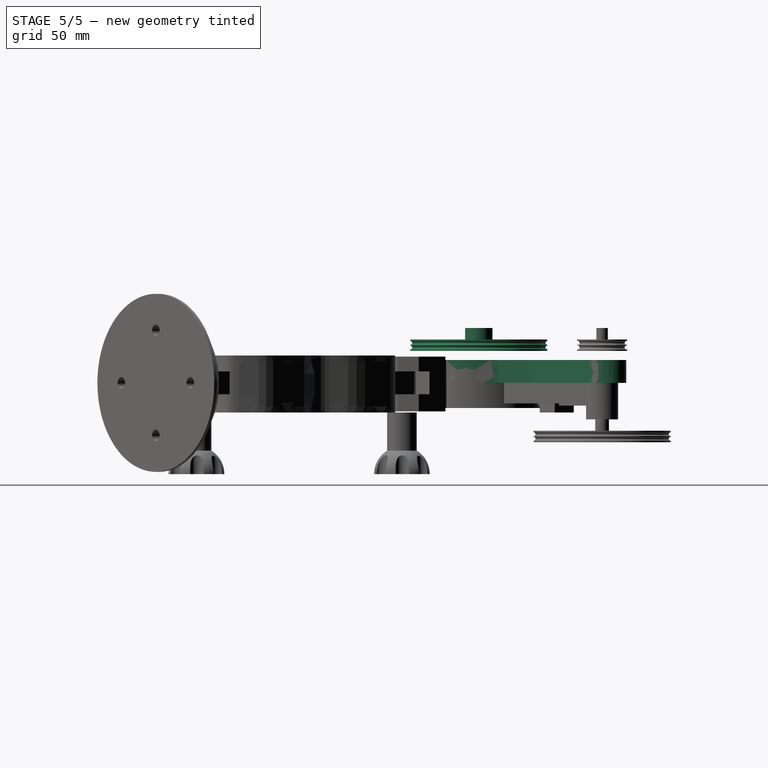
[diagram: stage 5 of 5 — right view after this stage's code; geometry added in this stage tinted green]
FEATURE [Part::Cylinder] Cylinder  label="Цилиндр"
  Angle = 360
  AttacherType = Attacher::AttachEngine3D
  FirstAngle = 0
  Height = 10
  Radius = 4
  SecondAngle = 0
FEATURE [Part::Box] Box  label="Куб"
  AttacherType = Attacher::AttachEngine3D
  Height = 10
  Length = 8
  Placement = pos=(-4,-4,0) rot=(0,0,1;0rad)
  Width = 7
FEATURE [Part::MultiCommon] Common
  Shapes = -> [Box,Cylinder]
FEATURE [Part::Cylinder] Cylinder001  label="Цилиндр001"
  Angle = 360
  AttacherType = Attacher::AttachEngine3D
  FirstAngle = 0
  Height = 5
  Radius = 30
  SecondAngle = 0
FEATURE [Part::Cylinder] Cylinder002  label="Цилиндр002"
  Angle = 360
  AttacherType = Attacher::AttachEngine3D
  FirstAngle = 0
  Height = 10
  Radius = 6
  SecondAngle = 0
FEATURE [Part::MultiFuse] Fusion
  Shapes = -> [Cylinder001,Cylinder002]
FEATURE [Part::Cut] Cut
  Base = -> Fusion
  Tool = -> Common
FEATURE [Part::Torus] Torus  label="Тор"
  Angle1 = -180
  Angle2 = 180
  Angle3 = 360
  AttacherType = Attacher::AttachEngine3D
  Placement = pos=(0,0,1.5) rot=(0,0,1;0rad)
  Radius1 = 30
  Radius2 = 0.8
FEATURE [Part::Torus] Torus001  label="Тор001"
  Angle1 = -180
  Angle2 = 180
  Angle3 = 360
  AttacherType = Attacher::AttachEngine3D
  Placement = pos=(0,0,3.5) rot=(0,0,1;0rad)
  Radius1 = 30
  Radius2 = 0.8
FEATURE [Part::Cut] Cut001
  Base = -> Cut
  Tool = -> Torus
FEATURE [Part::Cut] Cut002
  Base = -> Cut001
  Tool = -> Torus001
FEATURE [Part::Cylinder] Cylinder003  label="Цилиндр003"
  Angle = 360
  AttacherType = Attacher::AttachEngine3D
  FirstAngle = 0
  Height = 10
  Placement = pos=(0,18,0) rot=(0,0,1;0rad)
  Radius = 10
  SecondAngle = 0
FEATURE [Part::FeaturePython] Array  # Draft array (typed FeaturePython)
  Angle = 360
  ArrayType = 1
  Axis = (0,0,1)
  Base = -> Cylinder003
  Center = (0,0,0)
  Fuse = false
  IntervalAxis = (0,0,0)
  IntervalX = (1,0,0)
  IntervalY = (0,1,0)
  IntervalZ = (0,0,1)
  NumberPolar = 5
  NumberX = 2
  NumberY = 2
  NumberZ = 1
FEATURE [Part::MultiFuse] Fusion001
  Shapes = -> [Array]
FEATURE [Part::Cut] Cut003
  Base = -> Cut002
  Placement = pos=(0,0,14) rot=(0,0,1;0rad)
  Tool = -> Fusion001
FEATURE [Sketcher::SketchObject] Sketch
  FullyConstrained = false
  sketch-geometry (67):
    g0-g33: Circle x34 (B-spline internal-alignment scaffolding for g34; pole/knot coordinates omitted)
    g34: BSplineCurve PolesCount=34 KnotsCount=32 Degree=3 IsPeriodic=0
    g35-g66: GeomPoint x32 (B-spline internal-alignment scaffolding for g34; pole/knot coordinates omitted)
  constraints (4):
    c: Weight(g0) = 1
    c: Equal(g0, g1-g33) x33
    c: InternalAlignment(g0-g33 -> g34) x34
    c: InternalAlignment(g35-g66 -> g34) x32
FEATURE [Part::Extrusion] Extrude
  Base = -> Sketch
  Dir = (0,0,1)
  DirMode = 2
  FaceMakerClass = Part::FaceMakerBullseye
  LengthFwd = 10
  LengthRev = 0
  Solid = true
  Symmetric = false
FEATURE [Part::Cut] Cut004
  Base = -> Extrude
  Tool = -> Fusion003
FEATURE [Part::Cut] Cut005
  Base = -> Cut004
  Tool = -> Fusion004
FEATURE [Part::Cylinder] Cylinder011  label="Цилиндр011"
  Angle = 360
  AttacherType = Attacher::AttachEngine3D
  FirstAngle = 0
  Height = 10
  Placement = pos=(36,43,0) rot=(0,0,1;0rad)
  Radius = 6
  SecondAngle = 0
FEATURE [Part::Cut] Cut006
  Base = -> Cut005
  Tool = -> Cylinder010
FEATURE [Part::Cut] Cut007
  Base = -> Cut006
  Tool = -> Cylinder011
FEATURE [Part::Cylinder] Cylinder013  label="Цилиндр013"
  Angle = 360
  AttacherType = Attacher::AttachEngine3D
  FirstAngle = 0
  Height = 67
  Placement = pos=(48,57,-40) rot=(0,0,1;0rad)
  Radius = 1.5
  SecondAngle = 0
FEATURE [Part::Cylinder] Cylinder014  label="Цилиндр014"
  Angle = 360
  AttacherType = Attacher::AttachEngine3D
  FirstAngle = 0
  Height = 27
  Placement = pos=(48,57,-17) rot=(0,0,1;0rad)
  Radius = 3
  SecondAngle = 0
FEATURE [Part::Box] Box001  label="Куб001"
  AttacherType = Attacher::AttachEngine3D
  Height = 26
  Length = 6
  Placement = pos=(45,49,-16) rot=(0,0,1;0rad)
  Width = 8
FEATURE [Part::MultiFuse] Fusion006
  Shapes = -> [Cylinder014,Box001]
FEATURE [Part::MultiFuse] Fusion007
  Shapes = -> [Fusion006,Cylinder013]
FEATURE [Part::MultiFuse] Fusion008
  Shapes = -> [Cylinder012,Cut007]
FEATURE [Part::Cut] Cut008
  Base = -> Fusion008
  Tool = -> Fusion007
FEATURE [Part::Cylinder] Cylinder015  label="Цилиндр015"
  Angle = 360
  AttacherType = Attacher::AttachEngine3D
  FirstAngle = 0
  Height = 19
  Placement = pos=(0,0,-11) rot=(0,0,1;0rad)
  Radius = 25.5
  SecondAngle = 0
FEATURE [Part::MultiFuse] Fusion009
  Shapes = -> [Cylinder016,Cut008]
FEATURE [Part::MultiFuse] Fusion010
  Shapes = -> [Box002,Fusion009]
FEATURE [Part::Cut] Cut009
  Base = -> Fusion010
  Tool = -> Cylinder015
FEATURE [Part::MultiFuse] Fusion011
  Shapes = -> [Cut009,Box003,Box004]
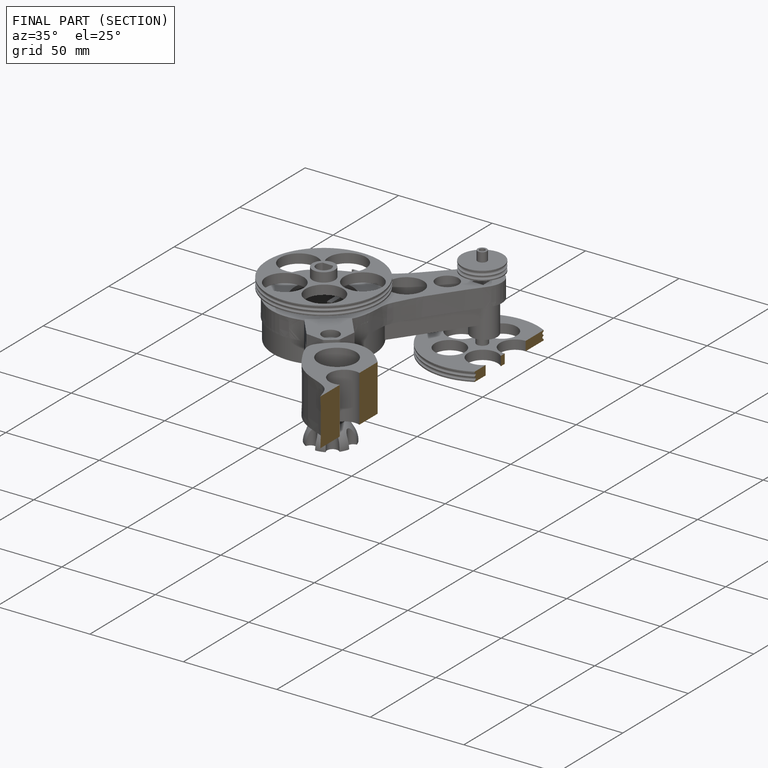
[diagram: finished part — half-section view (interior)]
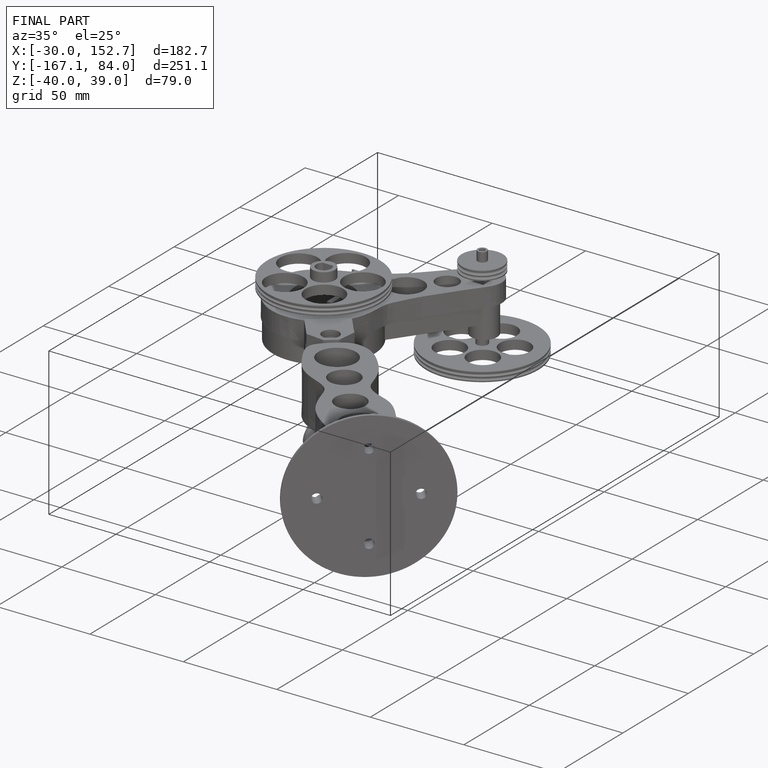
[diagram: finished part — iso view with bounding-box wireframe]
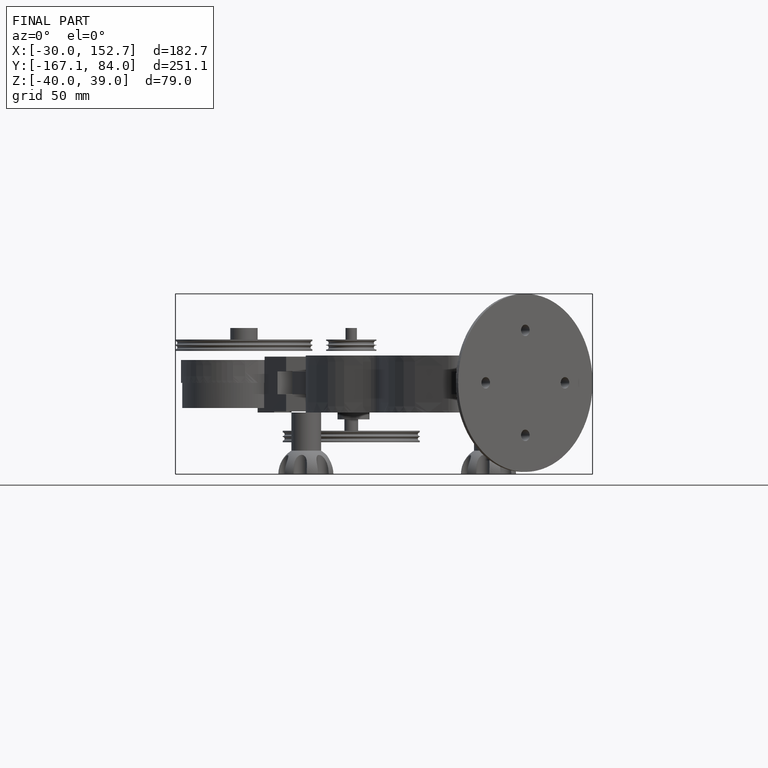
[diagram: finished part — front view with bounding-box wireframe]
